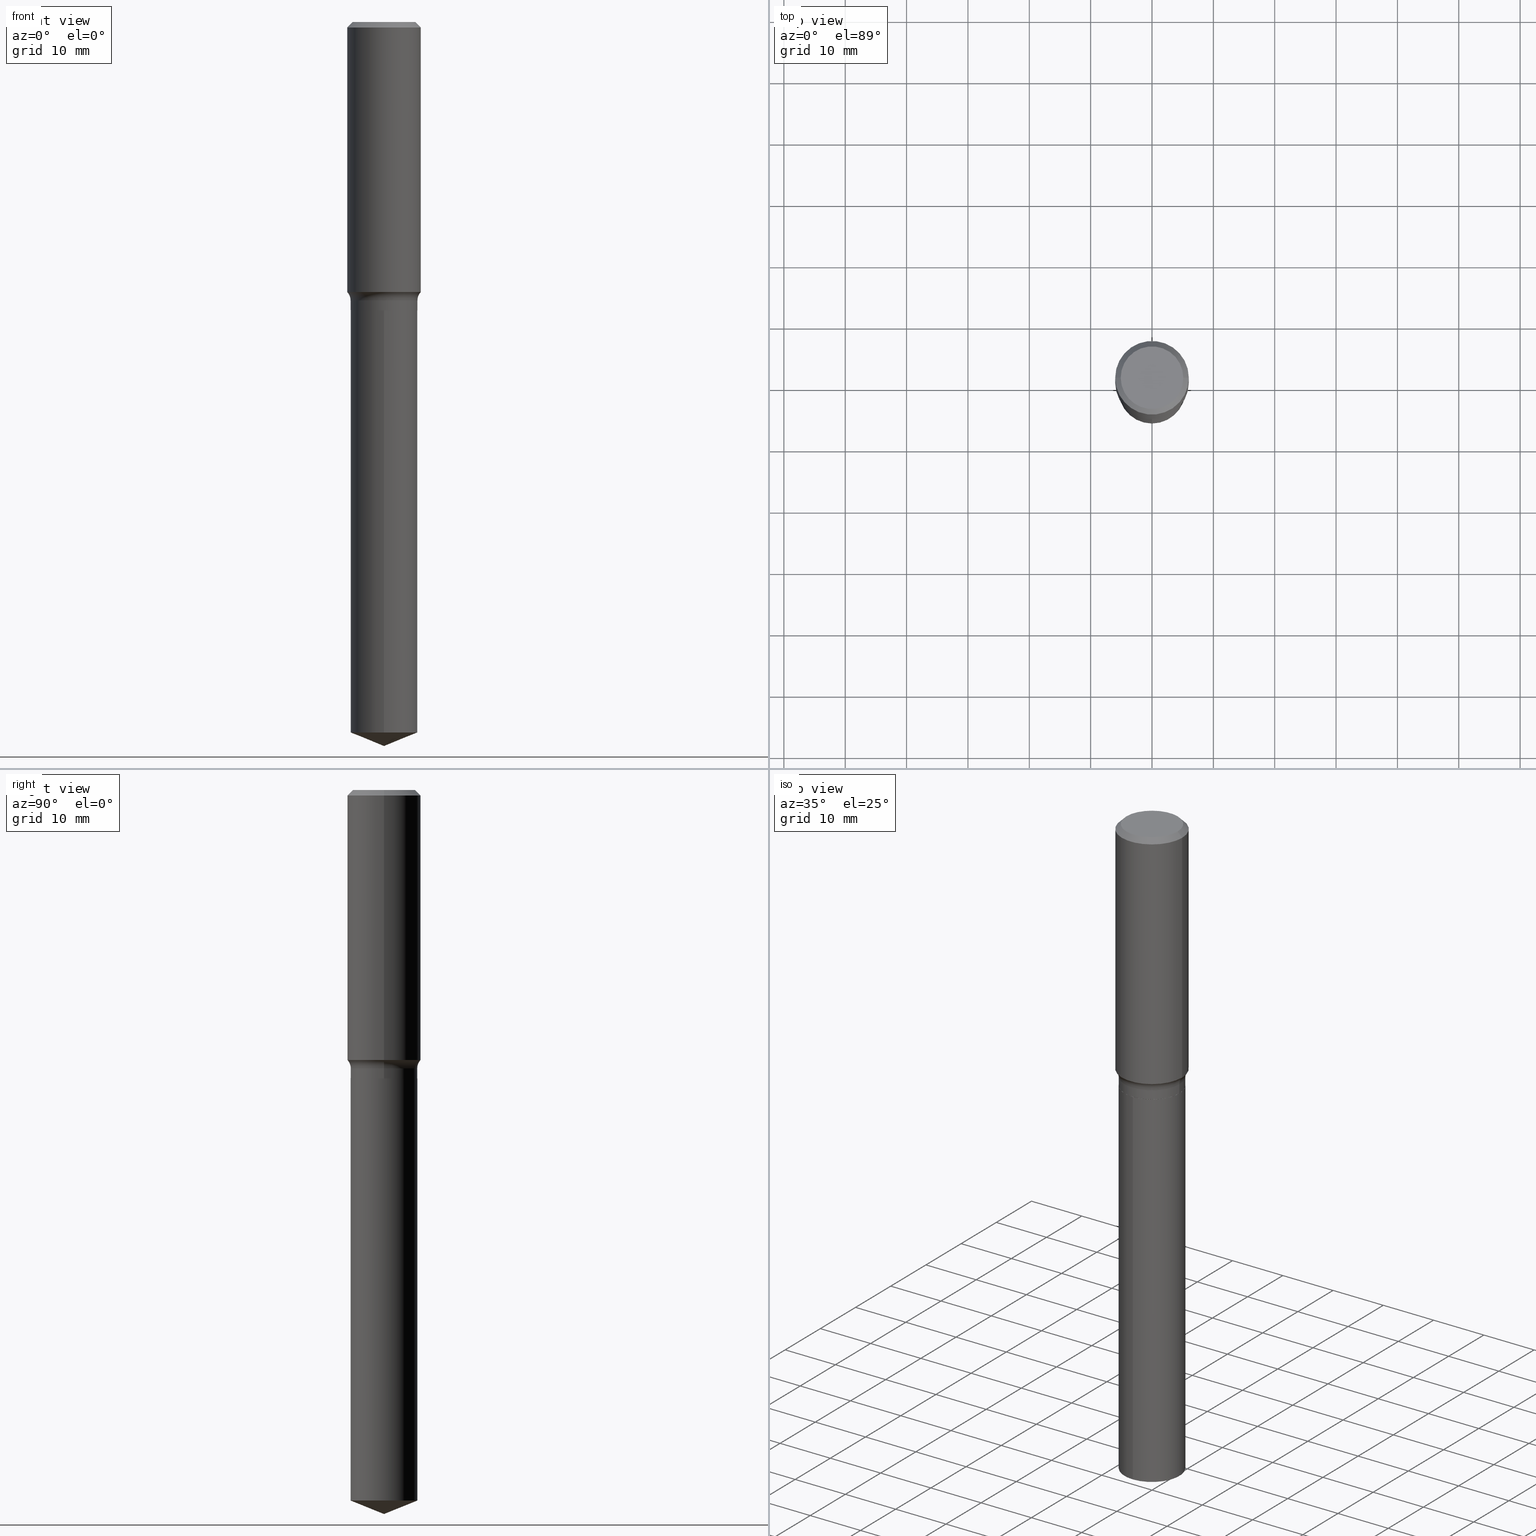
[diagram: canonical four-view strip — front | top / right | iso, engineering-drawing reading convention]
A machine part, canonical four-view strip (front | top / right | iso — engineering-drawing reading convention). The complete STEP part file that produces these views, byte-faithful:
ISO-10303-21;
HEADER;
FILE_DESCRIPTION (( 'STEP AP203' ),
    '1' );
FILE_NAME ('69302.STEP',
    '2024-04-19T17:44:51',
    ( '' ),
    ( '' ),
    'SwSTEP 2.0',
    'SolidWorks 2023',
    '' );
FILE_SCHEMA (( 'CONFIG_CONTROL_DESIGN' ));
ENDSEC;

DATA;
#1 = DIRECTION ( 'NONE',  ( -6.982962677686266711E-15, -1.000000000000000000, 3.491481338843145583E-15 ) ) ;
#2 = APPROVAL ( #326, 'UNSPECIFIED' ) ;
#3 = CARTESIAN_POINT ( 'NONE',  ( -1.498194642497543040E-15, -0.2145500000000064578, -1.850699999999999124 ) ) ;
#4 = LINE ( 'NONE', #377, #379 ) ;
#5 = AXIS2_PLACEMENT_3D ( 'NONE', #256, #395, #471 ) ;
#6 = VECTOR ( 'NONE', #368, 39.37007874015748143 ) ;
#7 = ORIENTED_EDGE ( 'NONE', *, *, #291, .F. ) ;
#8 = EDGE_LOOP ( 'NONE', ( #44, #387, #416, #142 ) ) ;
#9 = EDGE_CURVE ( 'NONE', #396, #112, #328, .T. ) ;
#10 = DIRECTION ( 'NONE',  ( -2.445468806185136877E-29, 3.491481338843145188E-15, 1.000000000000000000 ) ) ;
#11 = ADVANCED_FACE ( 'NONE', ( #350 ), #260, .F. ) ;
#12 = CIRCLE ( 'NONE', #297, 0.2145499999999999907 ) ;
#13 = CARTESIAN_POINT ( 'NONE',  ( -8.491645117030201611E-28, 1.212387596451452399E-13, 34.72407874015748064 ) ) ;
#14 = ORIENTED_EDGE ( 'NONE', *, *, #347, .F. ) ;
#15 = COORDINATED_UNIVERSAL_TIME_OFFSET ( 5, 0, .BEHIND. ) ;
#16 = DIRECTION ( 'NONE',  ( -2.445468806185136597E-29, 3.491481338843145583E-15, 1.000000000000000000 ) ) ;
#17 = ORIENTED_EDGE ( 'NONE', *, *, #274, .F. ) ;
#18 = EDGE_CURVE ( 'NONE', #384, #243, #275, .T. ) ;
#19 = LINE ( 'NONE', #330, #22 ) ;
#20 = ORIENTED_EDGE ( 'NONE', *, *, #250, .T. ) ;
#21 = DIRECTION ( 'NONE',  ( -2.445468806185136597E-29, 3.491481338843145583E-15, 1.000000000000000000 ) ) ;
#22 = VECTOR ( 'NONE', #141, 39.37007874015748143 ) ;
#23 = LOCAL_TIME ( 13, 44, 51.00000000000000000, #15 ) ;
#24 = EDGE_LOOP ( 'NONE', ( #204, #332, #197, #374 ) ) ;
#25 = DIRECTION ( 'NONE',  ( 1.000000000000000000, -6.982962677686266711E-15, 0.000000000000000000 ) ) ;
#26 = VERTEX_POINT ( 'NONE', #276 ) ;
#27 = EDGE_CURVE ( 'NONE', #85, #99, #4, .T. ) ;
#28 = CARTESIAN_POINT ( 'NONE',  ( 1.136162264108688643E-28, -1.622145872098012038E-14, -4.645999999999999908 ) ) ;
#29 = ORIENTED_EDGE ( 'NONE', *, *, #138, .F. ) ;
#30 = FACE_OUTER_BOUND ( 'NONE', #207, .T. ) ;
#31 = VECTOR ( 'NONE', #272, 39.37007874015748143 ) ;
#32 = CARTESIAN_POINT ( 'NONE',  ( 0.000000000000000000, 0.000000000000000000, 0.000000000000000000 ) ) ;
#33 = ORIENTED_EDGE ( 'NONE', *, *, #18, .F. ) ;
#34 = PRODUCT_DEFINITION_SHAPE ( 'NONE', 'NONE',  #229 ) ;
#35 = ADVANCED_FACE ( 'NONE', ( #491 ), #160, .T. ) ;
#36 = CYLINDRICAL_SURFACE ( 'NONE', #133, 0.2362000000000001043 ) ;
#37 = DIMENSIONAL_EXPONENTS ( 1.000000000000000000, 0.000000000000000000, 0.000000000000000000, 0.000000000000000000, 0.000000000000000000, 0.000000000000000000, 0.000000000000000000 ) ;
#38 = ORIENTED_EDGE ( 'NONE', *, *, #187, .T. ) ;
#39 = PERSON_AND_ORGANIZATION ( #485, #311 ) ;
#40 = ORIENTED_EDGE ( 'NONE', *, *, #355, .F. ) ;
#41 = VERTEX_POINT ( 'NONE', #237 ) ;
#42 = AXIS2_PLACEMENT_3D ( 'NONE', #177, #287, #179 ) ;
#43 = CARTESIAN_POINT ( 'NONE',  ( 0.2361999999999999933, -1.744152810908849053E-15, -0.03543000000000021826 ) ) ;
#44 = ORIENTED_EDGE ( 'NONE', *, *, #269, .F. ) ;
#45 = EDGE_CURVE ( 'NONE', #169, #313, #203, .T. ) ;
#46 = CARTESIAN_POINT ( 'NONE',  ( 0.000000000000000000, 0.000000000000000000, 0.000000000000000000 ) ) ;
#47 = CARTESIAN_POINT ( 'NONE',  ( 8.664295980313993487E-31, -1.237031838352134079E-16, -0.03543000000000021826 ) ) ;
#48 = LINE ( 'NONE', #3, #261 ) ;
#49 = ORIENTED_EDGE ( 'NONE', *, *, #288, .T. ) ;
#50 = APPROVAL_PERSON_ORGANIZATION ( #140, #467, #245 ) ;
#51 = APPLICATION_CONTEXT ( 'configuration controlled 3d designs of mechanical parts and assemblies' ) ;
#52 = MECHANICAL_CONTEXT ( 'NONE', #51, 'mechanical' ) ;
#53 = SECURITY_CLASSIFICATION_LEVEL ( 'unclassified' ) ;
#54 = CC_DESIGN_PERSON_AND_ORGANIZATION_ASSIGNMENT ( #354, #144, ( #345 ) ) ;
#55 = CARTESIAN_POINT ( 'NONE',  ( 4.368340928488509167E-29, -6.236833115575511352E-15, -1.786299999999999999 ) ) ;
#56 = VERTEX_POINT ( 'NONE', #279 ) ;
#57 = APPROVAL_DATE_TIME ( #134, #201 ) ;
#58 = DIRECTION ( 'NONE',  ( 1.000000000000000000, -6.982962677686269077E-15, 0.000000000000000000 ) ) ;
#59 = EDGE_CURVE ( 'NONE', #196, #281, #390, .T. ) ;
#60 = AXIS2_PLACEMENT_3D ( 'NONE', #356, #315, #463 ) ;
#61 = AXIS2_PLACEMENT_3D ( 'NONE', #412, #370, #25 ) ;
#62 = DIRECTION ( 'NONE',  ( -2.445468806185136877E-29, 3.491481338843145188E-15, 1.000000000000000000 ) ) ;
#63 = ADVANCED_FACE ( 'NONE', ( #358 ), #132, .T. ) ;
#64 = CALENDAR_DATE ( 2024, 19, 4 ) ;
#65 = DIRECTION ( 'NONE',  ( -2.445463332132347352E-29, 3.491489177998303329E-15, 1.000000000000000000 ) ) ;
#66 = EDGE_LOOP ( 'NONE', ( #438, #127, #38, #241 ) ) ;
#67 = PLANE ( 'NONE',  #343 ) ;
#68 = DIRECTION ( 'NONE',  ( -2.445463332132347352E-29, 3.491489177998303329E-15, 1.000000000000000000 ) ) ;
#69 = AXIS2_PLACEMENT_3D ( 'NONE', #206, #473, #363 ) ;
#70 = FACE_OUTER_BOUND ( 'NONE', #8, .T. ) ;
#71 = EDGE_CURVE ( 'NONE', #26, #112, #284, .T. ) ;
#72 = ORIENTED_EDGE ( 'NONE', *, *, #9, .T. ) ;
#73 = EDGE_LOOP ( 'NONE', ( #244, #82, #430, #123 ) ) ;
#74 = DIRECTION ( 'NONE',  ( -2.445463332132347352E-29, 3.491489177998303329E-15, 1.000000000000000000 ) ) ;
#75 = CARTESIAN_POINT ( 'NONE',  ( -0.2361999999999999933, -1.407814648925067803E-15, -0.03543000000000021826 ) ) ;
#76 = CLOSED_SHELL ( 'NONE', ( #148, #470, #372, #406, #388, #458, #11, #306, #63, #172, #437, #411 ) ) ;
#77 =( GEOMETRIC_REPRESENTATION_CONTEXT ( 3 ) GLOBAL_UNCERTAINTY_ASSIGNED_CONTEXT ( ( #186 ) ) GLOBAL_UNIT_ASSIGNED_CONTEXT ( ( #312, #126, #492 ) ) REPRESENTATION_CONTEXT ( 'NONE', 'WORKASPACE' ) );
#78 = EDGE_CURVE ( 'NONE', #112, #26, #12, .T. ) ;
#79 = DIRECTION ( 'NONE',  ( 1.000000000000000000, -6.982962677686266711E-15, 4.876176775795936353E-29 ) ) ;
#80 = APPLICATION_CONTEXT ( 'configuration controlled 3d designs of mechanical parts and assemblies' ) ;
#81 = DIRECTION ( 'NONE',  ( 1.000000000000000000, -6.982962677686266711E-15, 4.876176775795936353E-29 ) ) ;
#82 = ORIENTED_EDGE ( 'NONE', *, *, #222, .T. ) ;
#83 = CARTESIAN_POINT ( 'NONE',  ( 0.2925499999999999767, -8.279698846932628981E-15, -1.786299999999999999 ) ) ;
#84 = LINE ( 'NONE', #351, #298 ) ;
#85 = VERTEX_POINT ( 'NONE', #433 ) ;
#86 = CIRCLE ( 'NONE', #69, 0.2145499999999999907 ) ;
#87 = AXIS2_PLACEMENT_3D ( 'NONE', #334, #228, #110 ) ;
#88 = DIRECTION ( 'NONE',  ( -2.445468806185136597E-29, 3.491481338843145583E-15, 1.000000000000000000 ) ) ;
#89 = CARTESIAN_POINT ( 'NONE',  ( 4.525829119606832626E-29, -6.461684513797009689E-15, -1.850700000000000012 ) ) ;
#90 = APPLICATION_PROTOCOL_DEFINITION ( 'international standard', 'config_control_design', 1994, #51 ) ;
#91 = CARTESIAN_POINT ( 'NONE',  ( 4.525829119606832626E-29, -6.461684513797009689E-15, -1.850700000000000012 ) ) ;
#92 = DIRECTION ( 'NONE',  ( 1.000000000000000000, -6.982962677686261977E-15, 0.000000000000000000 ) ) ;
#93 = EDGE_CURVE ( 'NONE', #417, #99, #86, .T. ) ;
#94 = AXIS2_PLACEMENT_3D ( 'NONE', #397, #175, #327 ) ;
#95 = CONICAL_SURFACE ( 'NONE', #319, 0.2361999999999999933, 0.7853981633974452814 ) ;
#96 = CARTESIAN_POINT ( 'NONE',  ( -0.2145499999999999907, 1.524469439573294883E-15, -1.055357523614190107E-29 ) ) ;
#97 = DIRECTION ( 'NONE',  ( -0.7071067811865453523, 2.468850131082234184E-15, -0.7071067811865496822 ) ) ;
#98 = CALENDAR_DATE ( 2024, 19, 4 ) ;
#99 = VERTEX_POINT ( 'NONE', #364 ) ;
#100 = FACE_OUTER_BOUND ( 'NONE', #420, .T. ) ;
#101 = PRODUCT_RELATED_PRODUCT_CATEGORY ( 'detail', '', ( #259 ) ) ;
#102 = PERSON_AND_ORGANIZATION ( #485, #311 ) ;
#103 = CIRCLE ( 'NONE', #482, 0.2145499999999999907 ) ;
#104 = DIRECTION ( 'NONE',  ( 1.000000000000000000, -6.982962677686266711E-15, 0.000000000000000000 ) ) ;
#105 = DATE_AND_TIME ( #320, #489 ) ;
#106 = DIRECTION ( 'NONE',  ( 1.000000000000000000, -6.982962677686266711E-15, 0.000000000000000000 ) ) ;
#107 = CARTESIAN_POINT ( 'NONE',  ( 4.525829119606832626E-29, -6.461684513797009689E-15, -1.850700000000000012 ) ) ;
#108 = ORIENTED_EDGE ( 'NONE', *, *, #444, .F. ) ;
#109 = CC_DESIGN_PERSON_AND_ORGANIZATION_ASSIGNMENT ( #270, #344, ( #259 ) ) ;
#110 = DIRECTION ( 'NONE',  ( 1.000000000000000000, -6.982962677686266711E-15, 0.000000000000000000 ) ) ;
#111 = AXIS2_PLACEMENT_3D ( 'NONE', #278, #161, #280 ) ;
#112 = VERTEX_POINT ( 'NONE', #182 ) ;
#113 = CYLINDRICAL_SURFACE ( 'NONE', #210, 0.2145499999999999907 ) ;
#114 = DIRECTION ( 'NONE',  ( 1.000000000000000000, -6.982962677686266711E-15, 4.876176775795935793E-29 ) ) ;
#115 = CC_DESIGN_PERSON_AND_ORGANIZATION_ASSIGNMENT ( #102, #130, ( #229 ) ) ;
#116 = DIRECTION ( 'NONE',  ( -6.982962677686266711E-15, -1.000000000000000000, 3.819876010716751118E-15 ) ) ;
#117 = AXIS2_PLACEMENT_3D ( 'NONE', #83, #1, #92 ) ;
#118 = CC_DESIGN_APPROVAL ( #467, ( #367 ) ) ;
#119 = EDGE_LOOP ( 'NONE', ( #7, #273 ) ) ;
#120 = PLANE ( 'NONE',  #392 ) ;
#121 = FACE_OUTER_BOUND ( 'NONE', #119, .T. ) ;
#122 = ORIENTED_EDGE ( 'NONE', *, *, #421, .F. ) ;
#123 = ORIENTED_EDGE ( 'NONE', *, *, #215, .F. ) ;
#124 = AXIS2_PLACEMENT_3D ( 'NONE', #465, #65, #249 ) ;
#125 = DIRECTION ( 'NONE',  ( 1.000000000000000000, -6.982962677686266711E-15, 0.000000000000000000 ) ) ;
#126 =( NAMED_UNIT ( * ) PLANE_ANGLE_UNIT ( ) SI_UNIT ( $, .RADIAN. ) );
#127 = ORIENTED_EDGE ( 'NONE', *, *, #250, .F. ) ;
#128 = ADVANCED_FACE ( 'NONE', ( #432 ), #352, .T. ) ;
#129 = MANIFOLD_SOLID_BREP ( 'Body-Move/Copy2[2]', #76 ) ;
#130 = PERSON_AND_ORGANIZATION_ROLE ( 'creator' ) ;
#131 = LINE ( 'NONE', #426, #303 ) ;
#132 = CONICAL_SURFACE ( 'NONE', #475, 0.2361999999999999933, 0.7853981633974452814 ) ;
#133 = AXIS2_PLACEMENT_3D ( 'NONE', #439, #226, #371 ) ;
#134 = DATE_AND_TIME ( #247, #235 ) ;
#135 = CARTESIAN_POINT ( 'NONE',  ( -0.2007700000000000040, 1.463821008716677338E-15, 4.096137381438094301E-18 ) ) ;
#136 = VERTEX_POINT ( 'NONE', #212 ) ;
#137 = ORIENTED_EDGE ( 'NONE', *, *, #27, .T. ) ;
#138 = EDGE_CURVE ( 'NONE', #200, #26, #143, .T. ) ;
#139 = DIRECTION ( 'NONE',  ( 2.438088387897960049E-29, -3.491481338843145188E-15, -1.000000000000000000 ) ) ;
#140 = PERSON_AND_ORGANIZATION ( #485, #311 ) ;
#141 = DIRECTION ( 'NONE',  ( -2.445463332132347072E-29, 3.491489177998303329E-15, 1.000000000000000000 ) ) ;
#142 = ORIENTED_EDGE ( 'NONE', *, *, #9, .F. ) ;
#143 = CIRCLE ( 'NONE', #94, 0.07799999999999995826 ) ;
#144 = PERSON_AND_ORGANIZATION_ROLE ( 'classification_officer' ) ;
#145 = AXIS2_PLACEMENT_3D ( 'NONE', #331, #299, #114 ) ;
#146 = DIRECTION ( 'NONE',  ( 1.000000000000000000, -6.982962677686269077E-15, 0.000000000000000000 ) ) ;
#147 = DIRECTION ( 'NONE',  ( -6.982962677686266711E-15, -1.000000000000000000, 3.819876010716751118E-15 ) ) ;
#148 = ADVANCED_FACE ( 'NONE', ( #214 ), #400, .T. ) ;
#149 = CARTESIAN_POINT ( 'NONE',  ( -0.2362000000000001043, 1.678301941865357380E-15, -1.161852468318209317E-29 ) ) ;
#150 = ORIENTED_EDGE ( 'NONE', *, *, #27, .F. ) ;
#151 = CYLINDRICAL_SURFACE ( 'NONE', #217, 0.2145499999999999907 ) ;
#152 = CIRCLE ( 'NONE', #61, 0.2361999999999999933 ) ;
#153 = ADVANCED_FACE ( 'NONE', ( #100 ), #225, .T. ) ;
#154 = CARTESIAN_POINT ( 'NONE',  ( 1.114965065210317674E-28, -1.591878857004032847E-14, -4.559316173247069059 ) ) ;
#155 = LINE ( 'NONE', #149, #227 ) ;
#156 = VECTOR ( 'NONE', #10, 39.37007874015748143 ) ;
#157 = LOCAL_TIME ( 13, 44, 51.00000000000000000, #208 ) ;
#158 = APPROVAL_ROLE ( '' ) ;
#159 = ORIENTED_EDGE ( 'NONE', *, *, #71, .F. ) ;
#160 = CYLINDRICAL_SURFACE ( 'NONE', #266, 0.2145499999999999907 ) ;
#161 = DIRECTION ( 'NONE',  ( -2.445468806185136597E-29, 3.491481338843145583E-15, 1.000000000000000000 ) ) ;
#162 = DIRECTION ( 'NONE',  ( -2.445463332132347352E-29, 3.491489177998303329E-15, 1.000000000000000000 ) ) ;
#163 = AXIS2_PLACEMENT_3D ( 'NONE', #414, #295, #224 ) ;
#164 = LENGTH_MEASURE_WITH_UNIT ( LENGTH_MEASURE( 0.02539999999999999897 ), #452 );
#165 = EDGE_CURVE ( 'NONE', #85, #136, #242, .T. ) ;
#166 = ORIENTED_EDGE ( 'NONE', *, *, #183, .T. ) ;
#167 = ORIENTED_EDGE ( 'NONE', *, *, #78, .T. ) ;
#168 = DATE_AND_TIME ( #402, #157 ) ;
#169 = VERTEX_POINT ( 'NONE', #289 ) ;
#170 = PERSON_AND_ORGANIZATION ( #485, #311 ) ;
#171 = CARTESIAN_POINT ( 'NONE',  ( -0.2362000000000002153, -4.370228055880279997E-15, -1.732367843543948460 ) ) ;
#172 = ADVANCED_FACE ( 'NONE', ( #403 ), #67, .F. ) ;
#173 = CLOSED_SHELL ( 'NONE', ( #385, #153, #128, #35, #337 ) ) ;
#174 = VECTOR ( 'NONE', #383, 39.37007874015748143 ) ;
#175 = DIRECTION ( 'NONE',  ( 7.105427357601001859E-15, 1.000000000000000000, -3.491481338843145583E-15 ) ) ;
#176 = APPROVAL_ROLE ( '' ) ;
#177 = CARTESIAN_POINT ( 'NONE',  ( -1.001697619218023151E-46, 1.430158722866391908E-32, 4.096137381448114529E-18 ) ) ;
#178 = ORIENTED_EDGE ( 'NONE', *, *, #274, .T. ) ;
#179 = DIRECTION ( 'NONE',  ( 1.000000000000000000, -6.982962677686266711E-15, 4.876140833081945105E-29 ) ) ;
#180 = ORIENTED_EDGE ( 'NONE', *, *, #59, .T. ) ;
#181 = CIRCLE ( 'NONE', #111, 0.2362000000000002153 ) ;
#182 = CARTESIAN_POINT ( 'NONE',  ( 0.2145499999999999907, -7.735027758073100935E-15, -1.786299999999999999 ) ) ;
#183 = EDGE_CURVE ( 'NONE', #335, #281, #19, .T. ) ;
#184 = DIRECTION ( 'NONE',  ( 1.000000000000000000, -6.982962677686269077E-15, 0.000000000000000000 ) ) ;
#185 = CARTESIAN_POINT ( 'NONE',  ( 0.2140499999999999903, -7.956387674955755476E-15, -1.850700000000000012 ) ) ;
#186 = UNCERTAINTY_MEASURE_WITH_UNIT (LENGTH_MEASURE( 1.000000000000000082E-05 ), #312, 'distance_accuracy_value', 'NONE');
#187 = EDGE_CURVE ( 'NONE', #243, #313, #399, .T. ) ;
#188 = DIRECTION ( 'NONE',  ( -2.445468806185136597E-29, 3.491481338843145583E-15, 1.000000000000000000 ) ) ;
#189 = CARTESIAN_POINT ( 'NONE',  ( 0.2362000000000002153, -7.697905782215135283E-15, -1.732367843543948460 ) ) ;
#190 = DIRECTION ( 'NONE',  ( 0.7071067811866199593, -2.468850131083015945E-15, 0.7071067811864750752 ) ) ;
#191 = FACE_OUTER_BOUND ( 'NONE', #220, .T. ) ;
#192 = ORIENTED_EDGE ( 'NONE', *, *, #428, .T. ) ;
#193 = EDGE_LOOP ( 'NONE', ( #292, #137, #448, #40 ) ) ;
#194 = CIRCLE ( 'NONE', #442, 0.2145499999999999907 ) ;
#195 = DIRECTION ( 'NONE',  ( -6.982962677686266711E-15, -1.000000000000000000, 2.546584007144500745E-15 ) ) ;
#196 = VERTEX_POINT ( 'NONE', #248 ) ;
#197 = ORIENTED_EDGE ( 'NONE', *, *, #45, .F. ) ;
#198 = CARTESIAN_POINT ( 'NONE',  ( 4.525829119606832626E-29, -6.461684513797009689E-15, -1.850700000000000012 ) ) ;
#199 = ORIENTED_EDGE ( 'NONE', *, *, #165, .T. ) ;
#200 = VERTEX_POINT ( 'NONE', #171 ) ;
#201 = APPROVAL ( #490, 'UNSPECIFIED' ) ;
#202 = ORIENTED_EDGE ( 'NONE', *, *, #288, .F. ) ;
#203 = CIRCLE ( 'NONE', #425, 0.2361999999999999933 ) ;
#204 = ORIENTED_EDGE ( 'NONE', *, *, #474, .T. ) ;
#205 = DIRECTION ( 'NONE',  ( -2.445468806185136597E-29, 3.491481338843145583E-15, 1.000000000000000000 ) ) ;
#206 = CARTESIAN_POINT ( 'NONE',  ( 4.524606385203739825E-29, -6.459938773127588186E-15, -1.850200000000000067 ) ) ;
#207 = EDGE_LOOP ( 'NONE', ( #150, #199, #393, #17 ) ) ;
#208 = COORDINATED_UNIVERSAL_TIME_OFFSET ( 5, 0, .BEHIND. ) ;
#209 = LINE ( 'NONE', #96, #156 ) ;
#210 = AXIS2_PLACEMENT_3D ( 'NONE', #32, #263, #79 ) ;
#211 = DATE_AND_TIME ( #98, #329 ) ;
#212 = CARTESIAN_POINT ( 'NONE',  ( 0.2140499999999999903, -7.956387674955755476E-15, -1.850700000000000012 ) ) ;
#213 = PERSON_AND_ORGANIZATION ( #485, #311 ) ;
#214 = FACE_OUTER_BOUND ( 'NONE', #193, .T. ) ;
#215 = EDGE_CURVE ( 'NONE', #417, #112, #131, .T. ) ;
#216 = DIRECTION ( 'NONE',  ( -1.000000000000000000, 6.982962677686265922E-15, -4.876176775795935793E-29 ) ) ;
#217 = AXIS2_PLACEMENT_3D ( 'NONE', #373, #68, #147 ) ;
#218 = CARTESIAN_POINT ( 'NONE',  ( 4.525829119606832626E-29, -6.461684513797009689E-15, -1.850700000000000012 ) ) ;
#219 = ADVANCED_BREP_SHAPE_REPRESENTATION ( '69302', ( #460, #129, #252 ), #77 ) ;
#220 = EDGE_LOOP ( 'NONE', ( #33, #404, #325, #307 ) ) ;
#221 = DIRECTION ( 'NONE',  ( -2.445468806185136597E-29, 3.491481338843145583E-15, 1.000000000000000000 ) ) ;
#222 = EDGE_CURVE ( 'NONE', #99, #26, #209, .T. ) ;
#223 = EDGE_LOOP ( 'NONE', ( #29, #418, #72, #167 ) ) ;
#224 = DIRECTION ( 'NONE',  ( 1.000000000000000000, -6.982962677686265133E-15, 4.883557194083111780E-29 ) ) ;
#225 = CONICAL_SURFACE ( 'NONE', #124, 97.44436430772982760, 1.186823891356149963 ) ;
#226 = DIRECTION ( 'NONE',  ( -2.445468806185136597E-29, 3.491481338843145583E-15, 1.000000000000000000 ) ) ;
#227 = VECTOR ( 'NONE', #300, 39.37007874015748143 ) ;
#228 = DIRECTION ( 'NONE',  ( -2.445468806185136597E-29, 3.491481338843145583E-15, 1.000000000000000000 ) ) ;
#229 = PRODUCT_DEFINITION ( 'UNKNOWN', '', #367, #340 ) ;
#230 = ORIENTED_EDGE ( 'NONE', *, *, #215, .T. ) ;
#231 = ORIENTED_EDGE ( 'NONE', *, *, #361, .F. ) ;
#232 = CARTESIAN_POINT ( 'NONE',  ( 8.664295980313993487E-31, -1.237031838352134079E-16, -0.03543000000000021826 ) ) ;
#233 = AXIS2_PLACEMENT_3D ( 'NONE', #55, #21, #146 ) ;
#234 = ORIENTED_EDGE ( 'NONE', *, *, #316, .F. ) ;
#235 = LOCAL_TIME ( 13, 44, 51.00000000000000000, #472 ) ;
#236 = CYLINDRICAL_SURFACE ( 'NONE', #456, 0.2145499999999999907 ) ;
#237 = CARTESIAN_POINT ( 'NONE',  ( -1.498194642497476776E-15, -0.2145500000000159502, -4.559316173247068171 ) ) ;
#238 = DIRECTION ( 'NONE',  ( -2.438088387897960049E-29, 3.491481338843145188E-15, 1.000000000000000000 ) ) ;
#239 = DIRECTION ( 'NONE',  ( -2.445463332132347352E-29, 3.491489177998303329E-15, 1.000000000000000000 ) ) ;
#240 = DIRECTION ( 'NONE',  ( 6.588037525764805490E-15, 0.9271838545667909770, 0.3746065934159034105 ) ) ;
#241 = ORIENTED_EDGE ( 'NONE', *, *, #347, .T. ) ;
#242 = CIRCLE ( 'NONE', #5, 0.2140499999999999903 ) ;
#243 = VERTEX_POINT ( 'NONE', #135 ) ;
#244 = ORIENTED_EDGE ( 'NONE', *, *, #93, .T. ) ;
#245 = APPROVAL_ROLE ( '' ) ;
#246 = CARTESIAN_POINT ( 'NONE',  ( 4.525829119606832626E-29, -6.461684513797009689E-15, -1.850700000000000012 ) ) ;
#247 = CALENDAR_DATE ( 2024, 19, 4 ) ;
#248 = CARTESIAN_POINT ( 'NONE',  ( -1.498194642497543040E-15, -0.2145500000000064578, -1.850699999999999124 ) ) ;
#249 = DIRECTION ( 'NONE',  ( -6.982962677686266711E-15, -1.000000000000000000, 3.498761904101777071E-15 ) ) ;
#250 = EDGE_CURVE ( 'NONE', #243, #384, #408, .T. ) ;
#251 = AXIS2_PLACEMENT_3D ( 'NONE', #246, #357, #106 ) ;
#252 = AXIS2_PLACEMENT_3D ( 'NONE', #46, #389, #308 ) ;
#253 = CARTESIAN_POINT ( 'NONE',  ( 4.524606385203739825E-29, -6.459938773127588186E-15, -1.850200000000000067 ) ) ;
#254 = CC_DESIGN_DATE_AND_TIME_ASSIGNMENT ( #286, #282, ( #345 ) ) ;
#255 = PERSON_AND_ORGANIZATION ( #485, #311 ) ;
#256 = CARTESIAN_POINT ( 'NONE',  ( 4.525829119606832626E-29, -6.461684513797009689E-15, -1.850700000000000012 ) ) ;
#257 = CARTESIAN_POINT ( 'NONE',  ( 4.525829119606832626E-29, -6.461684513797009689E-15, -1.850700000000000012 ) ) ;
#258 = EDGE_LOOP ( 'NONE', ( #108, #49, #122 ) ) ;
#259 = PRODUCT ( '69302', '69302', '', ( #52 ) ) ;
#260 = TOROIDAL_SURFACE ( 'NONE', #309, 0.2925499999999999767, 0.07799999999999999989 ) ;
#261 = VECTOR ( 'NONE', #386, 39.37007874015748143 ) ;
#262 = CARTESIAN_POINT ( 'NONE',  ( 0.2007700000000000040, -1.560767496960719672E-15, 4.096137381458473721E-18 ) ) ;
#263 = DIRECTION ( 'NONE',  ( -2.445468806185136597E-29, 3.491481338843145583E-15, 1.000000000000000000 ) ) ;
#264 = FACE_OUTER_BOUND ( 'NONE', #391, .T. ) ;
#265 = CC_DESIGN_APPROVAL ( #2, ( #345 ) ) ;
#266 = AXIS2_PLACEMENT_3D ( 'NONE', #89, #162, #310 ) ;
#267 = FACE_OUTER_BOUND ( 'NONE', #455, .T. ) ;
#268 = AXIS2_PLACEMENT_3D ( 'NONE', #257, #188, #339 ) ;
#269 = EDGE_CURVE ( 'NONE', #200, #396, #285, .T. ) ;
#270 = PERSON_AND_ORGANIZATION ( #485, #311 ) ;
#271 = ORIENTED_EDGE ( 'NONE', *, *, #59, .F. ) ;
#272 = DIRECTION ( 'NONE',  ( -2.445468806185136877E-29, 3.491481338843145188E-15, 1.000000000000000000 ) ) ;
#273 = ORIENTED_EDGE ( 'NONE', *, *, #165, .F. ) ;
#274 = EDGE_CURVE ( 'NONE', #99, #417, #194, .T. ) ;
#275 = CIRCLE ( 'NONE', #60, 0.2007700000000000040 ) ;
#276 = CARTESIAN_POINT ( 'NONE',  ( -0.2145499999999999907, -4.823916504778254689E-15, -1.786299999999999999 ) ) ;
#277 = AXIS2_PLACEMENT_3D ( 'NONE', #431, #324, #104 ) ;
#278 = CARTESIAN_POINT ( 'NONE',  ( 4.236451522224939206E-29, -6.048529997745637969E-15, -1.732367843543948460 ) ) ;
#279 = CARTESIAN_POINT ( 'NONE',  ( 1.136162264108688643E-28, -1.622145872098012038E-14, -4.645999999999999908 ) ) ;
#280 = DIRECTION ( 'NONE',  ( 1.000000000000000000, -6.982962677686266711E-15, 0.000000000000000000 ) ) ;
#281 = VERTEX_POINT ( 'NONE', #479 ) ;
#282 = DATE_TIME_ROLE ( 'classification_date' ) ;
#283 = CARTESIAN_POINT ( 'NONE',  ( -0.2361999999999999933, 1.525672600634282748E-15, -0.03543000000000021826 ) ) ;
#284 = CIRCLE ( 'NONE', #233, 0.2145499999999999907 ) ;
#285 = CIRCLE ( 'NONE', #277, 0.2362000000000002153 ) ;
#286 = DATE_AND_TIME ( #64, #23 ) ;
#287 = DIRECTION ( 'NONE',  ( -2.445468806185136597E-29, 3.491481338843145583E-15, 1.000000000000000000 ) ) ;
#288 = EDGE_CURVE ( 'NONE', #56, #41, #484, .T. ) ;
#289 = CARTESIAN_POINT ( 'NONE',  ( 0.2361999999999999933, -1.773078968304709514E-15, -0.03543000000000021826 ) ) ;
#290 = DIRECTION ( 'NONE',  ( 2.445468806185136597E-29, -3.491481338843145583E-15, -1.000000000000000000 ) ) ;
#291 = EDGE_CURVE ( 'NONE', #136, #85, #450, .T. ) ;
#292 = ORIENTED_EDGE ( 'NONE', *, *, #291, .T. ) ;
#293 = CONICAL_SURFACE ( 'NONE', #268, 0.2140499999999999903, 0.7853981633975507526 ) ;
#294 = CARTESIAN_POINT ( 'NONE',  ( 4.368340928488509167E-29, -6.236833115575511352E-15, -1.786299999999999999 ) ) ;
#295 = DIRECTION ( 'NONE',  ( -2.445468806185136597E-29, 3.491481338843145583E-15, 1.000000000000000000 ) ) ;
#296 = DIRECTION ( 'NONE',  ( 6.982962677686265922E-15, 1.000000000000000000, -3.491489177998303329E-15 ) ) ;
#297 = AXIS2_PLACEMENT_3D ( 'NONE', #294, #16, #58 ) ;
#298 = VECTOR ( 'NONE', #240, 39.37007874015748143 ) ;
#299 = DIRECTION ( 'NONE',  ( -2.445468806185136597E-29, 3.491481338843145583E-15, 1.000000000000000000 ) ) ;
#300 = DIRECTION ( 'NONE',  ( -2.445468806185136877E-29, 3.491481338843145188E-15, 1.000000000000000000 ) ) ;
#301 = PLANE ( 'NONE',  #360 ) ;
#302 = CC_DESIGN_PERSON_AND_ORGANIZATION_ASSIGNMENT ( #170, #462, ( #367 ) ) ;
#303 = VECTOR ( 'NONE', #62, 39.37007874015748143 ) ;
#304 = APPROVAL_PERSON_ORGANIZATION ( #255, #2, #176 ) ;
#305 = CARTESIAN_POINT ( 'NONE',  ( 4.368340928488509167E-29, -6.236833115575511352E-15, -1.786299999999999999 ) ) ;
#306 = ADVANCED_FACE ( 'NONE', ( #267 ), #410, .T. ) ;
#307 = ORIENTED_EDGE ( 'NONE', *, *, #187, .F. ) ;
#308 = DIRECTION ( 'NONE',  ( 1.000000000000000000, 0.000000000000000000, 0.000000000000000000 ) ) ;
#309 = AXIS2_PLACEMENT_3D ( 'NONE', #305, #205, #453 ) ;
#310 = DIRECTION ( 'NONE',  ( -6.982962677686266711E-15, -1.000000000000000000, 3.819876010716751118E-15 ) ) ;
#311 = ORGANIZATION ( 'UNSPECIFIED', 'UNSPECIFIED', '' ) ;
#312 =( CONVERSION_BASED_UNIT ( 'INCH', #164 ) LENGTH_UNIT ( ) NAMED_UNIT ( #37 ) );
#313 = VERTEX_POINT ( 'NONE', #75 ) ;
#314 = COORDINATED_UNIVERSAL_TIME_OFFSET ( 5, 0, .BEHIND. ) ;
#315 = DIRECTION ( 'NONE',  ( -2.445468806185136597E-29, 3.491481338843145583E-15, 1.000000000000000000 ) ) ;
#316 = EDGE_CURVE ( 'NONE', #200, #313, #155, .T. ) ;
#317 = APPROVAL_DATE_TIME ( #168, #2 ) ;
#318 = DIRECTION ( 'NONE',  ( -2.445463332132347352E-29, 3.491489177998303329E-15, 1.000000000000000000 ) ) ;
#319 = AXIS2_PLACEMENT_3D ( 'NONE', #232, #422, #419 ) ;
#320 = CALENDAR_DATE ( 2024, 19, 4 ) ;
#321 = CARTESIAN_POINT ( 'NONE',  ( 8.664295980313993487E-31, -1.237031838352134079E-16, -0.03543000000000021826 ) ) ;
#322 = CC_DESIGN_DATE_AND_TIME_ASSIGNMENT ( #105, #362, ( #229 ) ) ;
#323 = SHAPE_DEFINITION_REPRESENTATION ( #34, #219 ) ;
#324 = DIRECTION ( 'NONE',  ( -2.445468806185136597E-29, 3.491481338843145583E-15, 1.000000000000000000 ) ) ;
#325 = ORIENTED_EDGE ( 'NONE', *, *, #45, .T. ) ;
#326 = APPROVAL_STATUS ( 'not_yet_approved' ) ;
#327 = DIRECTION ( 'NONE',  ( -1.000000000000000000, 7.105427357601001859E-15, 0.000000000000000000 ) ) ;
#328 = CIRCLE ( 'NONE', #117, 0.07799999999999995826 ) ;
#329 = LOCAL_TIME ( 13, 44, 51.00000000000000000, #314 ) ;
#330 = CARTESIAN_POINT ( 'NONE',  ( 1.524469439573340045E-15, 0.2145499999999935514, -1.850700000000000900 ) ) ;
#331 = CARTESIAN_POINT ( 'NONE',  ( 0.000000000000000000, 0.000000000000000000, 0.000000000000000000 ) ) ;
#332 = ORIENTED_EDGE ( 'NONE', *, *, #316, .T. ) ;
#333 = EDGE_LOOP ( 'NONE', ( #488, #178, #230, #159 ) ) ;
#334 = CARTESIAN_POINT ( 'NONE',  ( 4.525829119606832626E-29, -6.461684513797009689E-15, -1.850700000000000012 ) ) ;
#335 = VERTEX_POINT ( 'NONE', #445 ) ;
#336 = TOROIDAL_SURFACE ( 'NONE', #163, 0.2925499999999999767, 0.07799999999999999989 ) ;
#337 = ADVANCED_FACE ( 'NONE', ( #264 ), #301, .F. ) ;
#338 = EDGE_LOOP ( 'NONE', ( #476, #166, #271, #423 ) ) ;
#339 = DIRECTION ( 'NONE',  ( 1.000000000000000000, -6.982962677686266711E-15, 0.000000000000000000 ) ) ;
#340 = DESIGN_CONTEXT ( 'detailed design', #80, 'design' ) ;
#341 = CC_DESIGN_PERSON_AND_ORGANIZATION_ASSIGNMENT ( #213, #394, ( #367 ) ) ;
#342 = DIRECTION ( 'NONE',  ( -2.445463332132347352E-29, 3.491489177998303329E-15, 1.000000000000000000 ) ) ;
#343 = AXIS2_PLACEMENT_3D ( 'NONE', #469, #139, #216 ) ;
#344 = PERSON_AND_ORGANIZATION_ROLE ( 'design_owner' ) ;
#345 = SECURITY_CLASSIFICATION ( '', '', #53 ) ;
#346 = DIRECTION ( 'NONE',  ( -0.7071067811866199593, 7.493145998870616062E-15, 0.7071067811864750752 ) ) ;
#347 = EDGE_CURVE ( 'NONE', #313, #169, #152, .T. ) ;
#348 = ORIENTED_EDGE ( 'NONE', *, *, #398, .F. ) ;
#349 = DIRECTION ( 'NONE',  ( -2.445463332132347352E-29, 3.491489177998303329E-15, 1.000000000000000000 ) ) ;
#350 = FACE_OUTER_BOUND ( 'NONE', #223, .T. ) ;
#351 = CARTESIAN_POINT ( 'NONE',  ( 1.136164308041671340E-28, -1.622142970513121582E-14, -4.645999999999999908 ) ) ;
#352 = CONICAL_SURFACE ( 'NONE', #449, 97.44436430772982760, 1.186823891356149963 ) ;
#353 = ORIENTED_EDGE ( 'NONE', *, *, #269, .T. ) ;
#354 = PERSON_AND_ORGANIZATION ( #485, #311 ) ;
#355 = EDGE_CURVE ( 'NONE', #136, #417, #407, .T. ) ;
#356 = CARTESIAN_POINT ( 'NONE',  ( -1.001697619218023151E-46, 1.430158722866391908E-32, 4.096137381448114529E-18 ) ) ;
#357 = DIRECTION ( 'NONE',  ( -2.445468806185136597E-29, 3.491481338843145583E-15, 1.000000000000000000 ) ) ;
#358 = FACE_OUTER_BOUND ( 'NONE', #66, .T. ) ;
#359 = ORIENTED_EDGE ( 'NONE', *, *, #398, .T. ) ;
#360 = AXIS2_PLACEMENT_3D ( 'NONE', #107, #446, #296 ) ;
#361 = EDGE_CURVE ( 'NONE', #41, #335, #466, .T. ) ;
#362 = DATE_TIME_ROLE ( 'creation_date' ) ;
#363 = DIRECTION ( 'NONE',  ( 1.000000000000000000, -6.982962677686269077E-15, 0.000000000000000000 ) ) ;
#364 = CARTESIAN_POINT ( 'NONE',  ( -0.2145499999999999907, -4.823916504778254689E-15, -1.850200000000000067 ) ) ;
#365 = DIRECTION ( 'NONE',  ( -6.982962677686266711E-15, -1.000000000000000000, 3.819876010716751118E-15 ) ) ;
#366 = VECTOR ( 'NONE', #97, 39.37007874015748143 ) ;
#367 = PRODUCT_DEFINITION_FORMATION_WITH_SPECIFIED_SOURCE ( 'ANY', '', #259, .NOT_KNOWN. ) ;
#368 = DIRECTION ( 'NONE',  ( -6.474490251793192040E-15, -0.9271838545667882014, 0.3746065934159098498 ) ) ;
#369 = ORIENTED_EDGE ( 'NONE', *, *, #18, .T. ) ;
#370 = DIRECTION ( 'NONE',  ( -2.445468806185136597E-29, 3.491481338843145583E-15, 1.000000000000000000 ) ) ;
#371 = DIRECTION ( 'NONE',  ( 1.000000000000000000, -6.982962677686266711E-15, 4.876176775795935793E-29 ) ) ;
#372 = ADVANCED_FACE ( 'NONE', ( #447 ), #36, .T. ) ;
#373 = CARTESIAN_POINT ( 'NONE',  ( 4.525829119606832626E-29, -6.461684513797009689E-15, -1.850700000000000012 ) ) ;
#374 = ORIENTED_EDGE ( 'NONE', *, *, #487, .F. ) ;
#375 = DIRECTION ( 'NONE',  ( -6.982962677686266711E-15, -1.000000000000000000, 2.546584007144500745E-15 ) ) ;
#376 = LINE ( 'NONE', #43, #174 ) ;
#377 = CARTESIAN_POINT ( 'NONE',  ( -0.2140499999999999903, -4.940767787902515508E-15, -1.850700000000000012 ) ) ;
#378 = ORIENTED_EDGE ( 'NONE', *, *, #444, .T. ) ;
#379 = VECTOR ( 'NONE', #346, 39.37007874015748143 ) ;
#380 = DIRECTION ( 'NONE',  ( 1.000000000000000000, -6.982962677686265922E-15, 4.876176775795935793E-29 ) ) ;
#381 = AXIS2_PLACEMENT_3D ( 'NONE', #481, #74, #375 ) ;
#382 = EDGE_LOOP ( 'NONE', ( #468, #464, #192, #348 ) ) ;
#383 = DIRECTION ( 'NONE',  ( 0.7071067811865453523, -7.319954787623248157E-15, -0.7071067811865496822 ) ) ;
#384 = VERTEX_POINT ( 'NONE', #262 ) ;
#385 = ADVANCED_FACE ( 'NONE', ( #478 ), #151, .T. ) ;
#386 = DIRECTION ( 'NONE',  ( -2.445463332132347072E-29, 3.491489177998303329E-15, 1.000000000000000000 ) ) ;
#387 = ORIENTED_EDGE ( 'NONE', *, *, #138, .T. ) ;
#388 = ADVANCED_FACE ( 'NONE', ( #409 ), #113, .T. ) ;
#389 = DIRECTION ( 'NONE',  ( 0.000000000000000000, 0.000000000000000000, 1.000000000000000000 ) ) ;
#390 = CIRCLE ( 'NONE', #441, 0.2145499999999999907 ) ;
#391 = EDGE_LOOP ( 'NONE', ( #180, #359 ) ) ;
#392 = AXIS2_PLACEMENT_3D ( 'NONE', #198, #238, #380 ) ;
#393 = ORIENTED_EDGE ( 'NONE', *, *, #355, .T. ) ;
#394 = PERSON_AND_ORGANIZATION_ROLE ( 'creator' ) ;
#395 = DIRECTION ( 'NONE',  ( -2.445468806185136597E-29, 3.491481338843145583E-15, 1.000000000000000000 ) ) ;
#396 = VERTEX_POINT ( 'NONE', #189 ) ;
#397 = CARTESIAN_POINT ( 'NONE',  ( -0.2925499999999999767, -4.158140342109338424E-15, -1.786299999999999999 ) ) ;
#398 = EDGE_CURVE ( 'NONE', #281, #196, #103, .T. ) ;
#399 = LINE ( 'NONE', #283, #366 ) ;
#400 = CONICAL_SURFACE ( 'NONE', #251, 0.2140499999999999903, 0.7853981633975507526 ) ;
#401 = DIRECTION ( 'NONE',  ( -6.982962677686266711E-15, -1.000000000000000000, 3.498761904101777071E-15 ) ) ;
#402 = CALENDAR_DATE ( 2024, 19, 4 ) ;
#403 = FACE_OUTER_BOUND ( 'NONE', #461, .T. ) ;
#404 = ORIENTED_EDGE ( 'NONE', *, *, #480, .T. ) ;
#405 = ORIENTED_EDGE ( 'NONE', *, *, #487, .T. ) ;
#406 = ADVANCED_FACE ( 'NONE', ( #70 ), #336, .F. ) ;
#407 = LINE ( 'NONE', #185, #413 ) ;
#408 = CIRCLE ( 'NONE', #42, 0.2007700000000000040 ) ;
#409 = FACE_OUTER_BOUND ( 'NONE', #73, .T. ) ;
#410 = CYLINDRICAL_SURFACE ( 'NONE', #145, 0.2362000000000001043 ) ;
#411 = ADVANCED_FACE ( 'NONE', ( #30 ), #293, .T. ) ;
#412 = CARTESIAN_POINT ( 'NONE',  ( 8.664295980313993487E-31, -1.237031838352134079E-16, -0.03543000000000021826 ) ) ;
#413 = VECTOR ( 'NONE', #190, 39.37007874015748143 ) ;
#414 = CARTESIAN_POINT ( 'NONE',  ( 4.368340928488509167E-29, -6.236833115575511352E-15, -1.786299999999999999 ) ) ;
#415 = APPLICATION_PROTOCOL_DEFINITION ( 'international standard', 'config_control_design', 1994, #80 ) ;
#416 = ORIENTED_EDGE ( 'NONE', *, *, #71, .T. ) ;
#417 = VERTEX_POINT ( 'NONE', #483 ) ;
#418 = ORIENTED_EDGE ( 'NONE', *, *, #474, .F. ) ;
#419 = DIRECTION ( 'NONE',  ( -1.000000000000000000, 6.982962677686266711E-15, 0.000000000000000000 ) ) ;
#420 = EDGE_LOOP ( 'NONE', ( #202, #378, #231 ) ) ;
#421 = EDGE_CURVE ( 'NONE', #335, #41, #427, .T. ) ;
#422 = DIRECTION ( 'NONE',  ( 2.445468806185136597E-29, -3.491481338843145583E-15, -1.000000000000000000 ) ) ;
#423 = ORIENTED_EDGE ( 'NONE', *, *, #428, .F. ) ;
#424 = APPROVAL_DATE_TIME ( #211, #467 ) ;
#425 = AXIS2_PLACEMENT_3D ( 'NONE', #47, #459, #125 ) ;
#426 = CARTESIAN_POINT ( 'NONE',  ( 0.2145499999999999907, -1.498194642497588400E-15, 1.046183727247018074E-29 ) ) ;
#427 = CIRCLE ( 'NONE', #443, 0.2145499999999999907 ) ;
#428 = EDGE_CURVE ( 'NONE', #41, #196, #48, .T. ) ;
#429 = APPROVAL_STATUS ( 'not_yet_approved' ) ;
#430 = ORIENTED_EDGE ( 'NONE', *, *, #78, .F. ) ;
#431 = CARTESIAN_POINT ( 'NONE',  ( 4.236451522224939206E-29, -6.048529997745637969E-15, -1.732367843543948460 ) ) ;
#432 = FACE_OUTER_BOUND ( 'NONE', #258, .T. ) ;
#433 = CARTESIAN_POINT ( 'NONE',  ( -0.2140499999999999903, -4.938118560728404307E-15, -1.850700000000000012 ) ) ;
#434 = APPROVAL_PERSON_ORGANIZATION ( #39, #201, #158 ) ;
#435 = COORDINATED_UNIVERSAL_TIME_OFFSET ( 5, 0, .BEHIND. ) ;
#436 = DIRECTION ( 'NONE',  ( -1.000000000000000000, 6.982962677686266711E-15, 0.000000000000000000 ) ) ;
#437 = ADVANCED_FACE ( 'NONE', ( #121 ), #120, .F. ) ;
#438 = ORIENTED_EDGE ( 'NONE', *, *, #480, .F. ) ;
#439 = CARTESIAN_POINT ( 'NONE',  ( 0.000000000000000000, 0.000000000000000000, 0.000000000000000000 ) ) ;
#440 = CC_DESIGN_SECURITY_CLASSIFICATION ( #345, ( #367 ) ) ;
#441 = AXIS2_PLACEMENT_3D ( 'NONE', #91, #239, #365 ) ;
#442 = AXIS2_PLACEMENT_3D ( 'NONE', #253, #221, #184 ) ;
#443 = AXIS2_PLACEMENT_3D ( 'NONE', #154, #349, #195 ) ;
#444 = EDGE_CURVE ( 'NONE', #56, #335, #84, .T. ) ;
#445 = CARTESIAN_POINT ( 'NONE',  ( 1.524469439573406507E-15, 0.2145499999999841145, -4.559316173247069059 ) ) ;
#446 = DIRECTION ( 'NONE',  ( 2.445463332132347072E-29, -3.491489177998303329E-15, -1.000000000000000000 ) ) ;
#447 = FACE_OUTER_BOUND ( 'NONE', #24, .T. ) ;
#448 = ORIENTED_EDGE ( 'NONE', *, *, #93, .F. ) ;
#449 = AXIS2_PLACEMENT_3D ( 'NONE', #13, #318, #401 ) ;
#450 = CIRCLE ( 'NONE', #87, 0.2140499999999999903 ) ;
#451 = CARTESIAN_POINT ( 'NONE',  ( 0.000000000000000000, 0.000000000000000000, 0.000000000000000000 ) ) ;
#452 =( LENGTH_UNIT ( ) NAMED_UNIT ( * ) SI_UNIT ( $, .METRE. ) );
#453 = DIRECTION ( 'NONE',  ( 1.000000000000000000, -6.982962677686265133E-15, 4.883557194083111780E-29 ) ) ;
#454 = CARTESIAN_POINT ( 'NONE',  ( 0.2362000000000001043, -1.649375784469496920E-15, 1.151752954443000508E-29 ) ) ;
#455 = EDGE_LOOP ( 'NONE', ( #234, #353, #405, #14 ) ) ;
#456 = AXIS2_PLACEMENT_3D ( 'NONE', #451, #88, #81 ) ;
#457 = FACE_OUTER_BOUND ( 'NONE', #333, .T. ) ;
#458 = ADVANCED_FACE ( 'NONE', ( #457 ), #236, .T. ) ;
#459 = DIRECTION ( 'NONE',  ( -2.445468806185136597E-29, 3.491481338843145583E-15, 1.000000000000000000 ) ) ;
#460 = MANIFOLD_SOLID_BREP ( 'Body-Move/Copy2[1]', #173 ) ;
#461 = EDGE_LOOP ( 'NONE', ( #20, #369 ) ) ;
#462 = PERSON_AND_ORGANIZATION_ROLE ( 'design_supplier' ) ;
#463 = DIRECTION ( 'NONE',  ( 1.000000000000000000, -6.982962677686266711E-15, 4.876140833081945105E-29 ) ) ;
#464 = ORIENTED_EDGE ( 'NONE', *, *, #421, .T. ) ;
#465 = CARTESIAN_POINT ( 'NONE',  ( -8.491645117030201611E-28, 1.212387596451452399E-13, 34.72407874015748064 ) ) ;
#466 = CIRCLE ( 'NONE', #381, 0.2145499999999999907 ) ;
#467 = APPROVAL ( #429, 'UNSPECIFIED' ) ;
#468 = ORIENTED_EDGE ( 'NONE', *, *, #183, .F. ) ;
#469 = CARTESIAN_POINT ( 'NONE',  ( -5.008488096090115757E-47, 7.150793614331959538E-33, 2.048068690724057264E-18 ) ) ;
#470 = ADVANCED_FACE ( 'NONE', ( #191 ), #95, .T. ) ;
#471 = DIRECTION ( 'NONE',  ( 1.000000000000000000, -6.982962677686266711E-15, 0.000000000000000000 ) ) ;
#472 = COORDINATED_UNIVERSAL_TIME_OFFSET ( 5, 0, .BEHIND. ) ;
#473 = DIRECTION ( 'NONE',  ( -2.445468806185136597E-29, 3.491481338843145583E-15, 1.000000000000000000 ) ) ;
#474 = EDGE_CURVE ( 'NONE', #396, #200, #181, .T. ) ;
#475 = AXIS2_PLACEMENT_3D ( 'NONE', #321, #290, #436 ) ;
#476 = ORIENTED_EDGE ( 'NONE', *, *, #361, .T. ) ;
#477 = CC_DESIGN_APPROVAL ( #201, ( #229 ) ) ;
#478 = FACE_OUTER_BOUND ( 'NONE', #338, .T. ) ;
#479 = CARTESIAN_POINT ( 'NONE',  ( 1.524469439573406901E-15, 0.2145499999999935514, -1.850700000000000900 ) ) ;
#480 = EDGE_CURVE ( 'NONE', #384, #169, #376, .T. ) ;
#481 = CARTESIAN_POINT ( 'NONE',  ( 1.114965065210317674E-28, -1.591878857004032847E-14, -4.559316173247069059 ) ) ;
#482 = AXIS2_PLACEMENT_3D ( 'NONE', #218, #342, #116 ) ;
#483 = CARTESIAN_POINT ( 'NONE',  ( 0.2145499999999999907, -7.958133415625177769E-15, -1.850200000000000067 ) ) ;
#484 = LINE ( 'NONE', #28, #6 ) ;
#485 = PERSON ( 'UNSPECIFIED', 'UNSPECIFIED', 'UNSPECIFIED', ('UNSPECIFIED'), ('UNSPECIFIED'), ('UNSPECIFIED') ) ;
#486 = LINE ( 'NONE', #454, #31 ) ;
#487 = EDGE_CURVE ( 'NONE', #396, #169, #486, .T. ) ;
#488 = ORIENTED_EDGE ( 'NONE', *, *, #222, .F. ) ;
#489 = LOCAL_TIME ( 13, 44, 51.00000000000000000, #435 ) ;
#490 = APPROVAL_STATUS ( 'not_yet_approved' ) ;
#491 = FACE_OUTER_BOUND ( 'NONE', #382, .T. ) ;
#492 =( NAMED_UNIT ( * ) SI_UNIT ( $, .STERADIAN. ) SOLID_ANGLE_UNIT ( ) );
ENDSEC;
END-ISO-10303-21;
